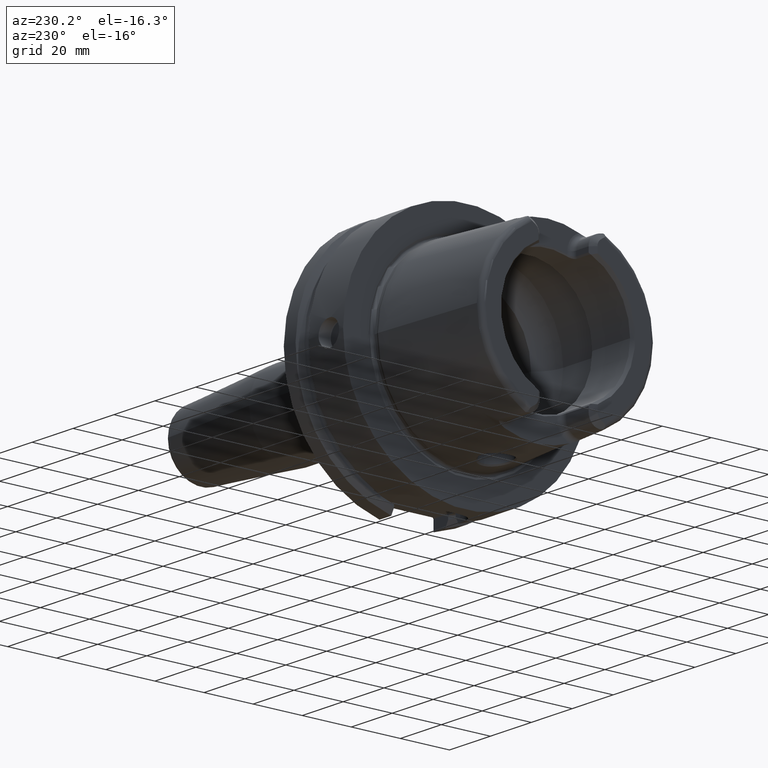
[diagram: clean part render]
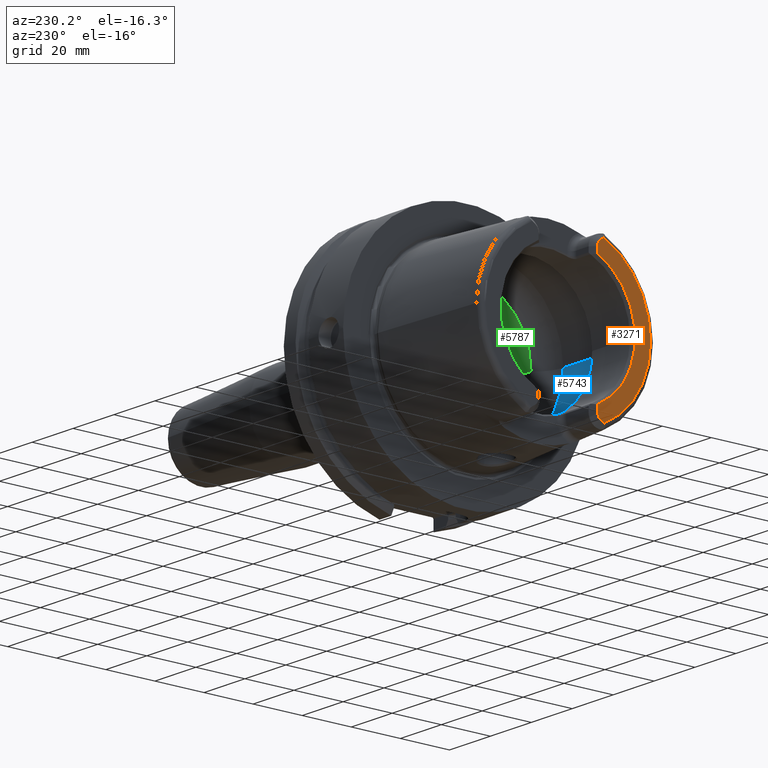
[diagram: same view with three faces highlighted in distinct colors, each labeled with its STEP entity id]
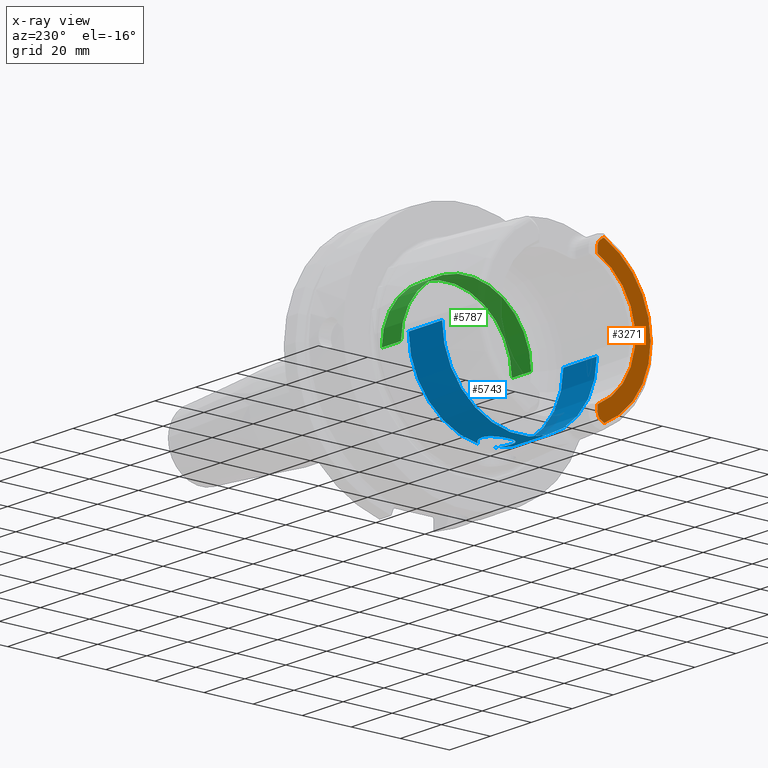
[diagram: x-ray of the same camera — body ghosted, the three highlighted faces saturated]
A machine part, auxiliary view with three faces highlighted in distinct colors.
The next image is the same camera in x-ray (body ghosted, the three faces saturated) — at least one of them is partly hidden behind the body in this view.
Their STEP definitions:

[orange] entity #3271 — the highlighted planar face has unit normal (1, 0, 0).
#126=DIRECTION('',(0.E0,0.E0,-1.E0));
#127=VECTOR('',#126,2.370180025047E0);
#128=CARTESIAN_POINT('',(-5.E1,-1.201E1,-2.458981997495E1));
#129=LINE('',#128,#127);
#130=DIRECTION('',(0.E0,0.E0,1.E0));
#131=VECTOR('',#130,2.370180025047E0);
#132=CARTESIAN_POINT('',(-5.E1,-1.201E1,2.458981997495E1));
#133=LINE('',#132,#131);
#134=CARTESIAN_POINT('',(-5.E1,-1.501E1,2.696E1));
#135=DIRECTION('',(1.E0,0.E0,0.E0));
#136=DIRECTION('',(0.E0,1.E0,-1.657933050107E-14));
#137=AXIS2_PLACEMENT_3D('',#134,#135,#136);
#139=DIRECTION('',(0.E0,8.533905854017E-1,-5.212720103245E-1));
#140=VECTOR('',#139,1.392150953463E0);
#141=CARTESIAN_POINT('',(-5.E1,-1.463423248617E1,3.024586108239E1));
#142=LINE('',#141,#140);
#143=DIRECTION('',(0.E0,8.533905854017E-1,5.212720103245E-1));
#144=VECTOR('',#143,1.392150953463E0);
#145=CARTESIAN_POINT('',(-5.E1,-1.463423248617E1,-3.024586108239E1));
#146=LINE('',#145,#144);
#147=CARTESIAN_POINT('',(-5.E1,-1.501E1,-2.696E1));
#148=DIRECTION('',(-1.E0,0.E0,0.E0));
#149=DIRECTION('',(0.E0,1.E0,0.E0));
#150=AXIS2_PLACEMENT_3D('',#147,#148,#149);
#197=CARTESIAN_POINT('',(-5.E1,0.E0,0.E0));
#198=DIRECTION('',(1.E0,0.E0,0.E0));
#199=DIRECTION('',(0.E0,-4.388653384185E-1,8.985528447091E-1));
#200=AXIS2_PLACEMENT_3D('',#197,#198,#199);
#359=CARTESIAN_POINT('',(-5.E1,0.E0,0.E0));
#360=DIRECTION('',(-1.E0,0.E0,0.E0));
#361=DIRECTION('',(0.E0,-4.355401503799E-1,-9.001693048572E-1));
#362=AXIS2_PLACEMENT_3D('',#359,#360,#361);
#2800=CARTESIAN_POINT('',(-5.E1,-1.201E1,2.458981997495E1));
#2801=CARTESIAN_POINT('',(-5.E1,-1.201E1,2.696E1));
#2802=VERTEX_POINT('',#2800);
#2803=VERTEX_POINT('',#2801);
#2804=CARTESIAN_POINT('',(-5.E1,-1.344618396903E1,2.952017175621E1));
#2805=VERTEX_POINT('',#2804);
#2806=CARTESIAN_POINT('',(-5.E1,-1.463423248617E1,3.024586108239E1));
#2807=VERTEX_POINT('',#2806);
#2893=CARTESIAN_POINT('',(-5.E1,-1.201E1,-2.458981997495E1));
#2894=CARTESIAN_POINT('',(-5.E1,-1.201E1,-2.696E1));
#2895=VERTEX_POINT('',#2893);
#2896=VERTEX_POINT('',#2894);
#2897=CARTESIAN_POINT('',(-5.E1,-1.344618396903E1,-2.952017175621E1));
#2898=VERTEX_POINT('',#2897);
#2899=CARTESIAN_POINT('',(-5.E1,-1.463423248617E1,-3.024586108239E1));
#2900=VERTEX_POINT('',#2899);
#3249=CARTESIAN_POINT('',(-5.E1,0.E0,0.E0));
#3250=DIRECTION('',(1.E0,0.E0,0.E0));
#3251=DIRECTION('',(0.E0,-1.E0,0.E0));
#3252=AXIS2_PLACEMENT_3D('',#3249,#3250,#3251);
#3253=PLANE('',#3252);
#3255=ORIENTED_EDGE('',*,*,#3254,.F.);
#3257=ORIENTED_EDGE('',*,*,#3256,.F.);
#3259=ORIENTED_EDGE('',*,*,#3258,.T.);
#3261=ORIENTED_EDGE('',*,*,#3260,.T.);
#3262=ORIENTED_EDGE('',*,*,#3213,.F.);
#3264=ORIENTED_EDGE('',*,*,#3263,.F.);
#3266=ORIENTED_EDGE('',*,*,#3265,.T.);
#3268=ORIENTED_EDGE('',*,*,#3267,.F.);
#3269=EDGE_LOOP('',(#3255,#3257,#3259,#3261,#3262,#3264,#3266,#3268));
#3270=FACE_OUTER_BOUND('',#3269,.F.);
#3271=ADVANCED_FACE('',(#3270),#3253,.F.);
#138=CIRCLE('',#137,3.E0);
#151=CIRCLE('',#150,3.E0);
#201=CIRCLE('',#200,2.736602540378E1);
#363=CIRCLE('',#362,3.360019156306E1);
#3213=EDGE_CURVE('',#2807,#2805,#142,.T.);
#3254=EDGE_CURVE('',#2895,#2896,#129,.T.);
#3256=EDGE_CURVE('',#2802,#2895,#201,.T.);
#3258=EDGE_CURVE('',#2802,#2803,#133,.T.);
#3260=EDGE_CURVE('',#2803,#2805,#138,.T.);
#3263=EDGE_CURVE('',#2900,#2807,#363,.T.);
#3265=EDGE_CURVE('',#2900,#2898,#146,.T.);
#3267=EDGE_CURVE('',#2896,#2898,#151,.T.);

[blue] entity #5743 — the highlighted cylindrical surface (partial cylindrical patch) has radius 31.5 mm, axis along (1, 0, 0).
#2143=CARTESIAN_POINT('',(-2.1E1,0.E0,-3.15E1));
#2144=CARTESIAN_POINT('',(-2.1E1,2.600323061180E-1,-3.15E1));
#2145=CARTESIAN_POINT('',(-2.096661770669E1,7.780092125203E-1,
-3.149361511448E1));
#2146=CARTESIAN_POINT('',(-2.081253217207E1,1.557831356964E0,
-3.146462024253E1));
#2147=CARTESIAN_POINT('',(-2.055574570683E1,2.311276553665E0,
-3.141793916189E1));
#2148=CARTESIAN_POINT('',(-2.020626936033E1,3.016750289566E0,
-3.135769789056E1));
#2149=CARTESIAN_POINT('',(-1.976601122444E1,3.673722414515E0,
-3.128719166027E1));
#2150=CARTESIAN_POINT('',(-1.923610094251E1,4.274362244914E0,
-3.121038529168E1));
#2151=CARTESIAN_POINT('',(-1.863192887465E1,4.797669158712E0,
-3.113374177159E1));
#2152=CARTESIAN_POINT('',(-1.797705422937E1,5.228767812436E0,
-3.106381618043E1));
#2153=CARTESIAN_POINT('',(-1.727328312497E1,5.571149218893E0,
-3.100390713215E1));
#2154=CARTESIAN_POINT('',(-1.652528168161E1,5.820750549838E0,
-3.095774716752E1));
#2155=CARTESIAN_POINT('',(-1.575298047354E1,5.969558117876E0,
-3.092922682144E1));
#2156=CARTESIAN_POINT('',(-1.497973962537E1,6.016520952670E0,
-3.092007277754E1));
#2157=CARTESIAN_POINT('',(-1.420754911889E1,5.964156360884E0,
-3.093027435868E1));
#2158=CARTESIAN_POINT('',(-1.345027932885E1,5.813467932253E0,
-3.095911415652E1));
#2159=CARTESIAN_POINT('',(-1.271967870279E1,5.567549612701E0,
-3.100453585674E1));
#2160=CARTESIAN_POINT('',(-1.202654252881E1,5.230424035329E0,
-3.106352122481E1));
#2161=CARTESIAN_POINT('',(-1.137895123984E1,4.805016643732E0,
-3.113255162345E1));
#2162=CARTESIAN_POINT('',(-1.079033967049E1,4.298901630879E0,
-3.120689445852E1));
#2163=CARTESIAN_POINT('',(-1.027063116687E1,3.719239024479E0,
-3.128166258912E1));
#2164=CARTESIAN_POINT('',(-9.979348326781E0,3.295456177510E0,
-3.132794036358E1));
#2165=CARTESIAN_POINT('',(-9.846794344809E0,3.073185883624E0,
-3.134972932139E1));
#2167=CARTESIAN_POINT('',(-9.846794344809E0,-3.073185883624E0,
-3.134972932139E1));
#2168=CARTESIAN_POINT('',(-9.980267592034E0,-3.296997627679E0,
-3.132778925661E1));
#2169=CARTESIAN_POINT('',(-1.027428374945E1,-3.724632451493E0,
-3.128107498049E1));
#2170=CARTESIAN_POINT('',(-1.080444609373E1,-4.313598102782E0,
-3.120491822807E1));
#2171=CARTESIAN_POINT('',(-1.140518288188E1,-4.825083200941E0,
-3.112945268139E1));
#2172=CARTESIAN_POINT('',(-1.205830347901E1,-5.248491279341E0,
-3.106046243563E1));
#2173=CARTESIAN_POINT('',(-1.275973274351E1,-5.584361629649E0,
-3.100151169777E1));
#2174=CARTESIAN_POINT('',(-1.350804961755E1,-5.829351893619E0,
-3.095611954416E1));
#2175=CARTESIAN_POINT('',(-1.428046132242E1,-5.973692441151E0,
-3.092842373405E1));
#2176=CARTESIAN_POINT('',(-1.505471261768E1,-6.016295068305E0,
-3.092011685270E1));
#2177=CARTESIAN_POINT('',(-1.582807827324E1,-5.959638584634E0,
-3.093115085218E1));
#2178=CARTESIAN_POINT('',(-1.659844154856E1,-5.801063635706E0,
-3.096146461693E1));
#2179=CARTESIAN_POINT('',(-1.734174730538E1,-5.542557460315E0,
-3.100905659353E1));
#2180=CARTESIAN_POINT('',(-1.803699861300E1,-5.193928840565E0,
-3.106968398001E1));
#2181=CARTESIAN_POINT('',(-1.868261407792E1,-4.758494760219E0,
-3.113976584786E1));
#2182=CARTESIAN_POINT('',(-1.927492183405E1,-4.234938547310E0,
-3.121575046881E1));
#2183=CARTESIAN_POINT('',(-1.979338991235E1,-3.637181048324E0,
-3.129142862807E1));
#2184=CARTESIAN_POINT('',(-2.022350943177E1,-2.985970626913E0,
-3.136060026546E1));
#2185=CARTESIAN_POINT('',(-2.056558062715E1,-2.286490117879E0,
-3.141969944443E1));
#2186=CARTESIAN_POINT('',(-2.081663060842E1,-1.540888222611E0,
-3.146538707330E1));
#2187=CARTESIAN_POINT('',(-2.096737197130E1,-7.693136660163E-1,
-3.149375977797E1));
#2188=CARTESIAN_POINT('',(-2.1E1,-2.570924323293E-1,-3.15E1));
#2189=CARTESIAN_POINT('',(-2.1E1,0.E0,-3.15E1));
#2191=CARTESIAN_POINT('',(-9.846794344809E0,0.E0,0.E0));
#2192=DIRECTION('',(-1.E0,0.E0,0.E0));
#2193=DIRECTION('',(0.E0,-9.756145662299E-2,-9.952295022665E-1));
#2194=AXIS2_PLACEMENT_3D('',#2191,#2192,#2193);
#2196=DIRECTION('',(-1.E0,0.E0,0.E0));
#2197=VECTOR('',#2196,1.640380457843E1);
#2198=CARTESIAN_POINT('',(-9.846794344809E0,-3.15E1,0.E0));
#2199=LINE('',#2198,#2197);
#2200=DIRECTION('',(-1.E0,0.E0,0.E0));
#2201=VECTOR('',#2200,1.640380457843E1);
#2202=CARTESIAN_POINT('',(-9.846794344809E0,3.15E1,0.E0));
#2203=LINE('',#2202,#2201);
#2204=CARTESIAN_POINT('',(-9.846794344809E0,0.E0,0.E0));
#2205=DIRECTION('',(-1.E0,0.E0,0.E0));
#2206=DIRECTION('',(0.E0,1.E0,0.E0));
#2207=AXIS2_PLACEMENT_3D('',#2204,#2205,#2206);
#2209=CARTESIAN_POINT('',(-9.846794344809E0,3.073185883624E0,
-3.134972932139E1));
#2240=CARTESIAN_POINT('',(-9.846794344809E0,-3.073185883624E0,
-3.134972932139E1));
#2443=CARTESIAN_POINT('',(-2.625059892324E1,0.E0,0.E0));
#2444=DIRECTION('',(-1.E0,0.E0,0.E0));
#2445=DIRECTION('',(0.E0,1.E0,0.E0));
#2446=AXIS2_PLACEMENT_3D('',#2443,#2444,#2445);
#2735=CARTESIAN_POINT('',(-9.846794344809E0,3.15E1,0.E0));
#2736=VERTEX_POINT('',#2735);
#2737=CARTESIAN_POINT('',(-2.625059892324E1,3.15E1,0.E0));
#2738=VERTEX_POINT('',#2737);
#2747=CARTESIAN_POINT('',(-9.846794344809E0,-3.15E1,0.E0));
#2748=VERTEX_POINT('',#2747);
#2749=CARTESIAN_POINT('',(-2.625059892324E1,-3.15E1,0.E0));
#2750=VERTEX_POINT('',#2749);
#2918=VERTEX_POINT('',#2209);
#2920=VERTEX_POINT('',#2240);
#2921=VERTEX_POINT('',#2143);
#5726=CARTESIAN_POINT('',(-5.3125E1,0.E0,0.E0));
#5727=DIRECTION('',(1.E0,0.E0,0.E0));
#5728=DIRECTION('',(0.E0,-1.E0,0.E0));
#5729=AXIS2_PLACEMENT_3D('',#5726,#5727,#5728);
#5730=CYLINDRICAL_SURFACE('',#5729,3.15E1);
#5731=ORIENTED_EDGE('',*,*,#5680,.F.);
#5732=ORIENTED_EDGE('',*,*,#5408,.F.);
#5734=ORIENTED_EDGE('',*,*,#5733,.T.);
#5735=ORIENTED_EDGE('',*,*,#5719,.T.);
#5737=ORIENTED_EDGE('',*,*,#5736,.F.);
#5738=ORIENTED_EDGE('',*,*,#5715,.F.);
#5740=ORIENTED_EDGE('',*,*,#5739,.T.);
#5741=EDGE_LOOP('',(#5731,#5732,#5734,#5735,#5737,#5738,#5740));
#5742=FACE_OUTER_BOUND('',#5741,.F.);
#5743=ADVANCED_FACE('',(#5742),#5730,.F.);
#2166=B_SPLINE_CURVE_WITH_KNOTS('',3,(#2143,#2144,#2145,#2146,#2147,#2148,#2149,
#2150,#2151,#2152,#2153,#2154,#2155,#2156,#2157,#2158,#2159,#2160,#2161,#2162,
#2163,#2164,#2165),.UNSPECIFIED.,.F.,.F.,(4,1,1,1,1,1,1,1,1,1,1,1,1,1,1,1,1,1,1,
1,4),(0.E0,5.E-2,1.E-1,1.5E-1,2.E-1,2.5E-1,3.E-1,3.5E-1,4.E-1,4.5E-1,5.E-1,
5.5E-1,6.E-1,6.5E-1,7.E-1,7.5E-1,8.E-1,8.5E-1,9.E-1,9.5E-1,1.E0),.UNSPECIFIED.);
#2190=B_SPLINE_CURVE_WITH_KNOTS('',3,(#2167,#2168,#2169,#2170,#2171,#2172,#2173,
#2174,#2175,#2176,#2177,#2178,#2179,#2180,#2181,#2182,#2183,#2184,#2185,#2186,
#2187,#2188,#2189),.UNSPECIFIED.,.F.,.F.,(4,1,1,1,1,1,1,1,1,1,1,1,1,1,1,1,1,1,1,
1,4),(0.E0,5.E-2,1.E-1,1.5E-1,2.E-1,2.5E-1,3.E-1,3.5E-1,4.E-1,4.5E-1,5.E-1,
5.5E-1,6.E-1,6.5E-1,7.E-1,7.5E-1,8.E-1,8.5E-1,9.E-1,9.5E-1,1.E0),.UNSPECIFIED.);
#2195=CIRCLE('',#2194,3.15E1);
#2208=CIRCLE('',#2207,3.15E1);
#2447=CIRCLE('',#2446,3.15E1);
#5408=EDGE_CURVE('',#2920,#2921,#2190,.T.);
#5680=EDGE_CURVE('',#2921,#2918,#2166,.T.);
#5715=EDGE_CURVE('',#2736,#2738,#2203,.T.);
#5719=EDGE_CURVE('',#2748,#2750,#2199,.T.);
#5733=EDGE_CURVE('',#2920,#2748,#2195,.T.);
#5736=EDGE_CURVE('',#2738,#2750,#2447,.T.);
#5739=EDGE_CURVE('',#2736,#2918,#2208,.T.);

[green] entity #5787 — the highlighted cylindrical surface (partial cylindrical patch) has radius 26.5 mm, axis along (1, 0, 0).
#2080=CARTESIAN_POINT('',(-1.E-1,0.E0,0.E0));
#2081=DIRECTION('',(1.E0,0.E0,0.E0));
#2082=DIRECTION('',(0.E0,1.E0,0.E0));
#2083=AXIS2_PLACEMENT_3D('',#2080,#2081,#2082);
#2242=DIRECTION('',(-1.E0,0.E0,0.E0));
#2243=VECTOR('',#2242,9.4E0);
#2244=CARTESIAN_POINT('',(9.3E0,2.65E1,0.E0));
#2245=LINE('',#2244,#2243);
#2251=DIRECTION('',(-1.E0,0.E0,0.E0));
#2252=VECTOR('',#2251,9.4E0);
#2253=CARTESIAN_POINT('',(9.3E0,-2.65E1,0.E0));
#2254=LINE('',#2253,#2252);
#2255=CARTESIAN_POINT('',(9.3E0,0.E0,0.E0));
#2256=DIRECTION('',(1.E0,0.E0,0.E0));
#2257=DIRECTION('',(0.E0,1.E0,0.E0));
#2258=AXIS2_PLACEMENT_3D('',#2255,#2256,#2257);
#2726=CARTESIAN_POINT('',(9.3E0,2.65E1,0.E0));
#2728=VERTEX_POINT('',#2726);
#2730=CARTESIAN_POINT('',(9.3E0,-2.65E1,0.E0));
#2732=VERTEX_POINT('',#2730);
#2733=CARTESIAN_POINT('',(-1.E-1,2.65E1,0.E0));
#2734=VERTEX_POINT('',#2733);
#2745=CARTESIAN_POINT('',(-1.E-1,-2.65E1,0.E0));
#2746=VERTEX_POINT('',#2745);
#5775=CARTESIAN_POINT('',(-5.3125E1,0.E0,0.E0));
#5776=DIRECTION('',(1.E0,0.E0,0.E0));
#5777=DIRECTION('',(0.E0,-1.E0,0.E0));
#5778=AXIS2_PLACEMENT_3D('',#5775,#5776,#5777);
#5779=CYLINDRICAL_SURFACE('',#5778,2.65E1);
#5780=ORIENTED_EDGE('',*,*,#5765,.T.);
#5781=ORIENTED_EDGE('',*,*,#5699,.T.);
#5782=ORIENTED_EDGE('',*,*,#5769,.F.);
#5784=ORIENTED_EDGE('',*,*,#5783,.F.);
#5785=EDGE_LOOP('',(#5780,#5781,#5782,#5784));
#5786=FACE_OUTER_BOUND('',#5785,.F.);
#5787=ADVANCED_FACE('',(#5786),#5779,.F.);
#2084=CIRCLE('',#2083,2.65E1);
#2259=CIRCLE('',#2258,2.65E1);
#5699=EDGE_CURVE('',#2734,#2746,#2084,.T.);
#5765=EDGE_CURVE('',#2728,#2734,#2245,.T.);
#5769=EDGE_CURVE('',#2732,#2746,#2254,.T.);
#5783=EDGE_CURVE('',#2728,#2732,#2259,.T.);